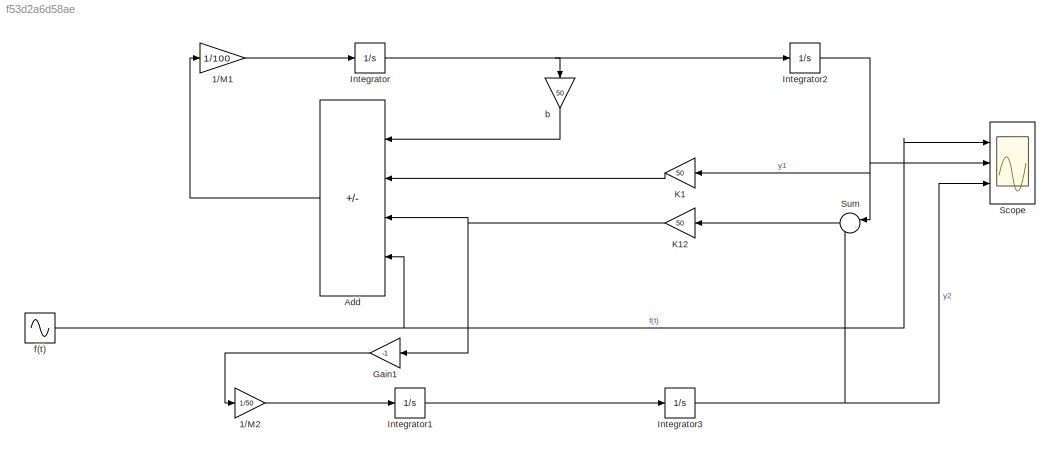
MODEL slx_f53d2a6d58ae
KIND model
CONFIG AbsTol = auto
CONFIG EnableMultiTasking = off
CONFIG FixedStep = auto
CONFIG MaxStep = 0.001
CONFIG MinStep = auto
CONFIG RelTol = 1e-3
CONFIG SampleTimeConstraint = Unconstrained
CONFIG SolverName = VariableStepAuto
CONFIG StartTime = 0.0
CONFIG StopTime = 100.0
BLOCK [Gain] 1//M1
  Gain = 1/100
BLOCK [Gain] 1//M2
  Gain = 1/50
BLOCK [Sum] Add
  IconShape = rectangular
  Inputs = --++
  NameLocation = top
  Ports = [4, 1]
BLOCK [Gain] Gain1
  Gain = -1
  NameLocation = top
BLOCK [Integrator] Integrator
  Ports = [1, 1]
BLOCK [Integrator] Integrator1
  Ports = [1, 1]
BLOCK [Integrator] Integrator2
  Ports = [1, 1]
BLOCK [Integrator] Integrator3
  Ports = [1, 1]
BLOCK [Gain] K1
  Gain = 50
  NameLocation = top
BLOCK [Gain] K12
  Gain = 50
  NameLocation = top
BLOCK [Scope] Scope
  Floating = off
  NumInputPorts = 3
  Ports = [3]
  ScopeSpecificationString = Simulink.scopes.TimeScopeBlockCfg('CurrentConfiguration', extmgr.ConfigurationSet(extmgr.Configuration('Core','General UI',true),extmgr.Configuration('Core','Source UI',true),extmgr.Configuration('Sources','WiredSimulink',true),extmgr.Configuration('Visuals','Time Domain',true,'SerializedDisplays',{struct('MinYLimReal','-2.5','MaxYLimReal','2.5','YLabelReal','','MinYLimMag','0.00000','MaxYLimMag',...<+3547ch>
BLOCK [Sum] Sum
  Inputs = |-+
  NameLocation = top
  Ports = [2, 1]
BLOCK [Gain] b
  Gain = 50
  NameLocation = left
BLOCK [Sin] f(t)
  Amplitude = 2
  Frequency = 10
  Ports = [0, 1]
  SampleTime = 0
LINE 1//M1:1 -> Integrator:1
LINE 1//M2:1 -> Integrator1:1
LINE Add:1 -> 1//M1:1
LINE Gain1:1 -> 1//M2:1
LINE Integrator1:1 -> Integrator3:1
NET Integrator2:1 -> K1:1, Scope:2, Sum:1
NET Integrator3:1 -> Scope:3, Sum:2
NET Integrator:1 -> Integrator2:1, b:1
NET K12:1 -> Add:3, Gain1:1
LINE K1:1 -> Add:2
LINE Sum:1 -> K12:1
LINE b:1 -> Add:1
NET f(t):1 -> Add:4, Scope:1
note: NET lines group one-source signal fan-out (src -> all destinations, sorted); 1:1 wires keep LINE
